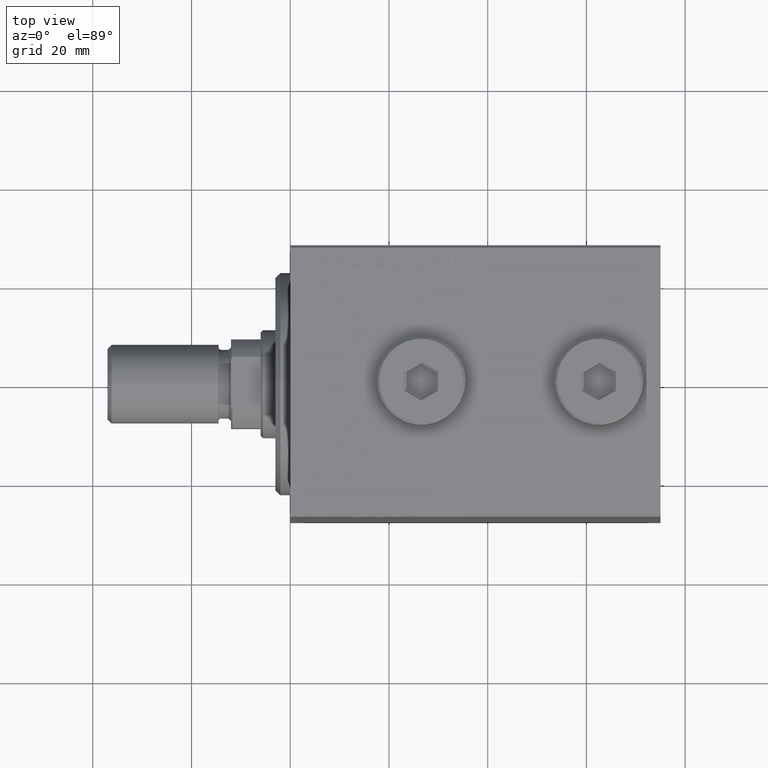
[diagram: clean part render]
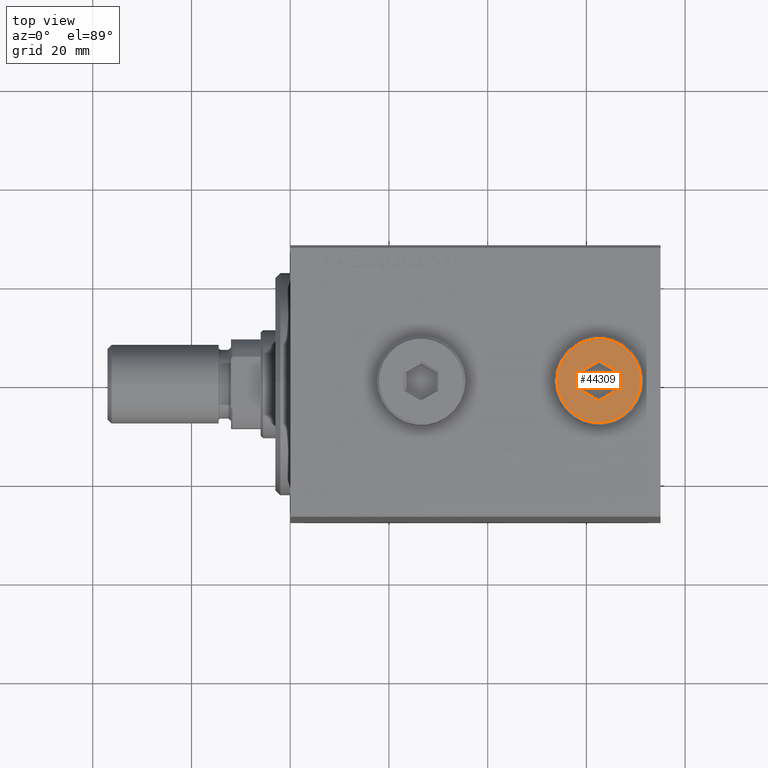
[diagram: same view with one face highlighted and labeled with its STEP entity id]
A machine part, top view. The second image highlights one B-rep face of the part: STEP entity #44309.
In plain terms, the highlighted planar face has unit normal (0, 0, 1).
Its self-contained STEP definition (entity closure, byte-faithful):
#522 = VERTEX_POINT ( 'NONE', #39896 ) ;
#728 = CARTESIAN_POINT ( 'NONE',  ( 0.2500000000000027756, -3.897114317029979347, 5.000000000000000000 ) ) ;
#761 = CARTESIAN_POINT ( 'NONE',  ( 3.500000000000006661, 2.020725942163694722, 5.000000000000000000 ) ) ;
#1086 = FACE_OUTER_BOUND ( 'NONE', #10222, .T. ) ;
#1312 = CARTESIAN_POINT ( 'NONE',  ( 3.500000000000006661, -2.020725942163693833, 5.000000000000000000 ) ) ;
#1539 = CARTESIAN_POINT ( 'NONE',  ( 0.000000000000000000, 0.000000000000000000, 5.000000000000000000 ) ) ;
#1848 = CARTESIAN_POINT ( 'NONE',  ( 0.000000000000000000, 0.000000000000000000, 5.000000000000000000 ) ) ;
#2228 = EDGE_CURVE ( 'NONE', #31363, #16523, #41144, .T. ) ;
#2323 = DIRECTION ( 'NONE',  ( 0.000000000000000000, 0.000000000000000000, 1.000000000000000000 ) ) ;
#2360 = CARTESIAN_POINT ( 'NONE',  ( -0.2500000000000027756, 3.897114317029978459, 5.000000000000000000 ) ) ;
#3867 = CARTESIAN_POINT ( 'NONE',  ( -3.500000000000006661, 2.020725942163692945, 5.000000000000000000 ) ) ;
#5039 = PLANE ( 'NONE',  #20784 ) ;
#5321 = EDGE_CURVE ( 'NONE', #36675, #522, #31347, .T. ) ;
#5348 = DIRECTION ( 'NONE',  ( 1.000000000000000000, 0.000000000000000000, 0.000000000000000000 ) ) ;
#5687 = VECTOR ( 'NONE', #7479, 1000.000000000000000 ) ;
#5977 = VECTOR ( 'NONE', #6770, 1000.000000000000000 ) ;
#5994 = LINE ( 'NONE', #15507, #34308 ) ;
#6044 = AXIS2_PLACEMENT_3D ( 'NONE', #1848, #2323, #5348 ) ;
#6283 = VERTEX_POINT ( 'NONE', #3867 ) ;
#6770 = DIRECTION ( 'NONE',  ( 0.8660254037844387076, 0.4999999999999998335, 0.000000000000000000 ) ) ;
#6802 = VERTEX_POINT ( 'NONE', #20471 ) ;
#7209 = LINE ( 'NONE', #2360, #5977 ) ;
#7479 = DIRECTION ( 'NONE',  ( -0.8660254037844387076, -0.4999999999999998890, 0.000000000000000000 ) ) ;
#7694 = ORIENTED_EDGE ( 'NONE', *, *, #40594, .T. ) ;
#8442 = ORIENTED_EDGE ( 'NONE', *, *, #2228, .T. ) ;
#8520 = FACE_BOUND ( 'NONE', #44499, .T. ) ;
#8525 = VECTOR ( 'NONE', #36514, 1000.000000000000000 ) ;
#9812 = EDGE_CURVE ( 'NONE', #20130, #12695, #11056, .T. ) ;
#10222 = EDGE_LOOP ( 'NONE', ( #22018, #26654 ) ) ;
#11056 = LINE ( 'NONE', #45993, #28613 ) ;
#11254 = AXIS2_PLACEMENT_3D ( 'NONE', #43628, #32929, #15234 ) ;
#11524 = ORIENTED_EDGE ( 'NONE', *, *, #44880, .T. ) ;
#11543 = DIRECTION ( 'NONE',  ( 0.000000000000000000, 0.000000000000000000, 1.000000000000000000 ) ) ;
#12695 = VERTEX_POINT ( 'NONE', #1312 ) ;
#15234 = DIRECTION ( 'NONE',  ( 1.000000000000000000, 0.000000000000000000, 0.000000000000000000 ) ) ;
#15395 = ORIENTED_EDGE ( 'NONE', *, *, #9812, .T. ) ;
#15507 = CARTESIAN_POINT ( 'NONE',  ( 3.250000000000003109, 2.165063509461103042, 5.000000000000000000 ) ) ;
#15522 = CARTESIAN_POINT ( 'NONE',  ( -3.250000000000003109, -2.165063509461102598, 5.000000000000000000 ) ) ;
#16523 = VERTEX_POINT ( 'NONE', #28986 ) ;
#17724 = LINE ( 'NONE', #728, #5687 ) ;
#18724 = EDGE_CURVE ( 'NONE', #16523, #6283, #19745, .T. ) ;
#19745 = LINE ( 'NONE', #39993, #8525 ) ;
#20130 = VERTEX_POINT ( 'NONE', #761 ) ;
#20471 = CARTESIAN_POINT ( 'NONE',  ( 1.590596867181068292E-15, 4.041451884327386779, 5.000000000000000000 ) ) ;
#20784 = AXIS2_PLACEMENT_3D ( 'NONE', #1539, #11543, #29676 ) ;
#21733 = EDGE_CURVE ( 'NONE', #12695, #31363, #17724, .T. ) ;
#22018 = ORIENTED_EDGE ( 'NONE', *, *, #5321, .T. ) ;
#26202 = DIRECTION ( 'NONE',  ( 0.8660254037844387076, -0.4999999999999998890, 0.000000000000000000 ) ) ;
#26654 = ORIENTED_EDGE ( 'NONE', *, *, #39601, .T. ) ;
#28022 = CARTESIAN_POINT ( 'NONE',  ( -1.006139216460143630E-15, -4.041451884327387667, 5.000000000000000000 ) ) ;
#28613 = VECTOR ( 'NONE', #43183, 1000.000000000000000 ) ;
#28986 = CARTESIAN_POINT ( 'NONE',  ( -3.500000000000006661, -2.020725942163694278, 5.000000000000000000 ) ) ;
#29039 = ORIENTED_EDGE ( 'NONE', *, *, #18724, .T. ) ;
#29676 = DIRECTION ( 'NONE',  ( 1.000000000000000000, 0.000000000000000000, -0.000000000000000000 ) ) ;
#30496 = CARTESIAN_POINT ( 'NONE',  ( -8.500000000000010658, 0.000000000000000000, 5.000000000000000000 ) ) ;
#31347 = CIRCLE ( 'NONE', #11254, 8.500000000000010658 ) ;
#31363 = VERTEX_POINT ( 'NONE', #28022 ) ;
#32929 = DIRECTION ( 'NONE',  ( 0.000000000000000000, 0.000000000000000000, 1.000000000000000000 ) ) ;
#33923 = DIRECTION ( 'NONE',  ( -0.8660254037844385966, 0.4999999999999999445, 0.000000000000000000 ) ) ;
#34308 = VECTOR ( 'NONE', #26202, 1000.000000000000000 ) ;
#36514 = DIRECTION ( 'NONE',  ( 0.000000000000000000, 1.000000000000000000, 0.000000000000000000 ) ) ;
#36675 = VERTEX_POINT ( 'NONE', #30496 ) ;
#38530 = ORIENTED_EDGE ( 'NONE', *, *, #21733, .T. ) ;
#39601 = EDGE_CURVE ( 'NONE', #522, #36675, #40197, .T. ) ;
#39896 = CARTESIAN_POINT ( 'NONE',  ( 8.500000000000010658, 1.071565949253934716E-15, 5.000000000000000000 ) ) ;
#39993 = CARTESIAN_POINT ( 'NONE',  ( -3.500000000000006661, 1.732050807568878081, 5.000000000000000000 ) ) ;
#40197 = CIRCLE ( 'NONE', #6044, 8.500000000000010658 ) ;
#40594 = EDGE_CURVE ( 'NONE', #6802, #20130, #5994, .T. ) ;
#41144 = LINE ( 'NONE', #15522, #41689 ) ;
#41689 = VECTOR ( 'NONE', #33923, 1000.000000000000114 ) ;
#43183 = DIRECTION ( 'NONE',  ( 0.000000000000000000, -1.000000000000000000, 0.000000000000000000 ) ) ;
#43628 = CARTESIAN_POINT ( 'NONE',  ( 0.000000000000000000, 0.000000000000000000, 5.000000000000000000 ) ) ;
#44309 = ADVANCED_FACE ( 'NONE', ( #8520, #1086 ), #5039, .T. ) ;
#44499 = EDGE_LOOP ( 'NONE', ( #29039, #11524, #7694, #15395, #38530, #8442 ) ) ;
#44880 = EDGE_CURVE ( 'NONE', #6283, #6802, #7209, .T. ) ;
#45993 = CARTESIAN_POINT ( 'NONE',  ( 3.500000000000006661, -1.732050807568878303, 5.000000000000000000 ) ) ;